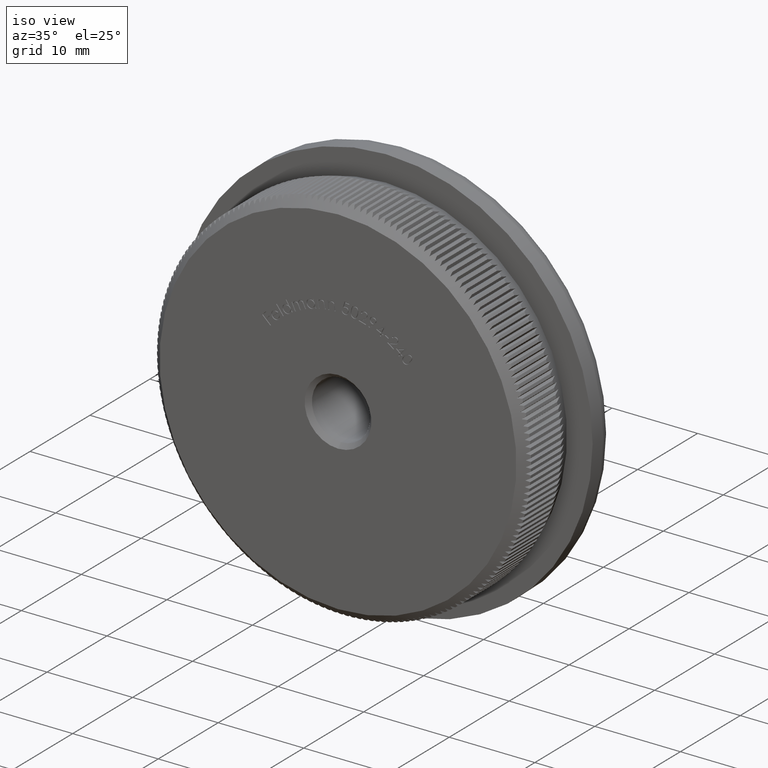
[diagram: clean part render]
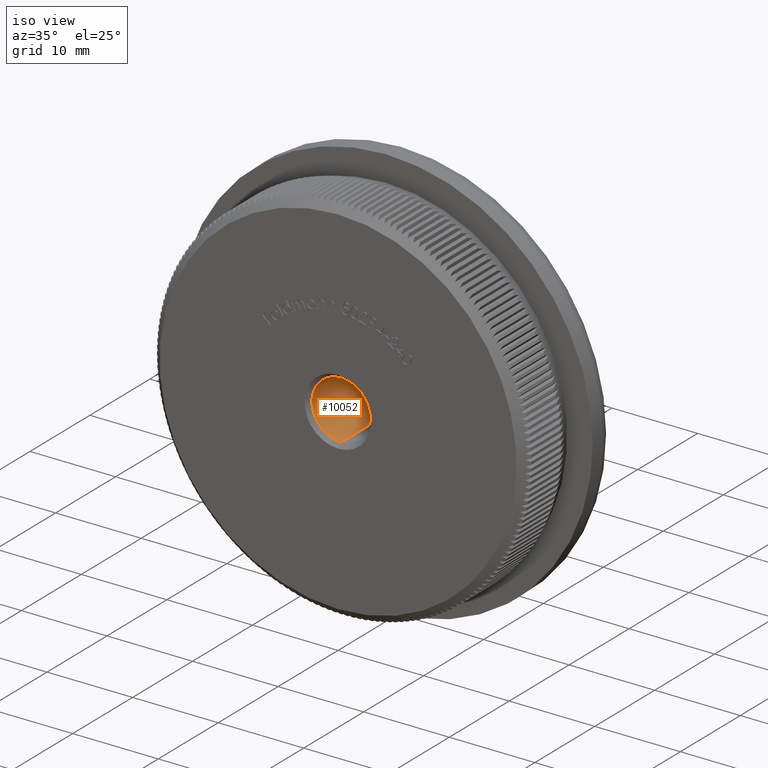
[diagram: same view with one face highlighted and labeled with its STEP entity id]
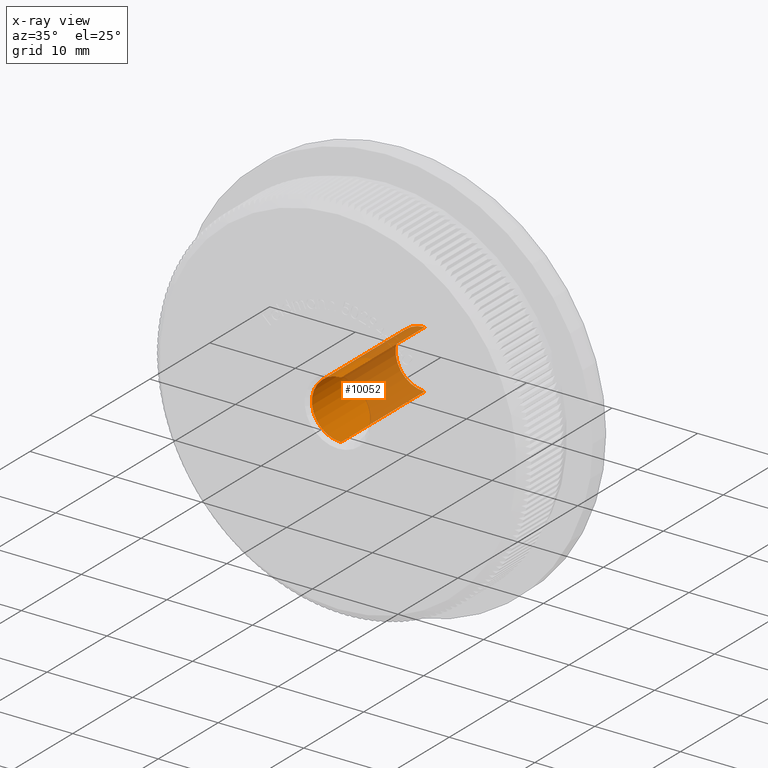
[diagram: x-ray of the same camera — body ghosted, the highlighted face saturated]
A machine part, iso view. The second image highlights one B-rep face of the part: STEP entity #10052.
The next image is the same camera in x-ray: the body ghosted, the highlighted face saturated — about 52% of this face is hidden behind the body in this view.
In plain terms, the highlighted cylindrical surface (edge-blend (fillet) strip) has radius 3.4 mm, axis along (-0, -1, -0).
Its self-contained STEP definition (entity closure, byte-faithful):
#27 = CARTESIAN_POINT ( 'NONE',  ( 4.163799117100995600E-016, 0.0000000000000000000, 3.399999999999995500 ) ) ;
#74 = ORIENTED_EDGE ( 'NONE', *, *, #16066, .T. ) ;
#2779 = CIRCLE ( 'NONE', #4873, 3.399999999999995500 ) ;
#3163 = EDGE_CURVE ( 'NONE', #30627, #23133, #6333, .T. ) ;
#4873 = AXIS2_PLACEMENT_3D ( 'NONE', #31132, #6093, #23854 ) ;
#5427 = DIRECTION ( 'NONE',  ( -0.0000000000000000000, -1.000000000000000000, -0.0000000000000000000 ) ) ;
#6093 = DIRECTION ( 'NONE',  ( 0.0000000000000000000, -1.000000000000000000, 0.0000000000000000000 ) ) ;
#6333 = LINE ( 'NONE', #27, #7941 ) ;
#6777 = VECTOR ( 'NONE', #14960, 1000.000000000000000 ) ;
#7447 = EDGE_LOOP ( 'NONE', ( #13385, #16219, #74, #24849 ) ) ;
#7745 = VERTEX_POINT ( 'NONE', #12858 ) ;
#7941 = VECTOR ( 'NONE', #5427, 1000.000000000000000 ) ;
#9639 = DIRECTION ( 'NONE',  ( 0.0000000000000000000, 0.0000000000000000000, 1.000000000000000000 ) ) ;
#9871 = DIRECTION ( 'NONE',  ( 0.0000000000000000000, 0.0000000000000000000, -1.000000000000000000 ) ) ;
#9929 = CARTESIAN_POINT ( 'NONE',  ( 4.163799117100995600E-016, 0.4999999999999891800, 3.399999999999995500 ) ) ;
#10052 = ADVANCED_FACE ( 'NONE', ( #29134 ), #22437, .F. ) ;
#10727 = VERTEX_POINT ( 'NONE', #16081 ) ;
#12858 = CARTESIAN_POINT ( 'NONE',  ( 0.0000000000000000000, 0.4999999999999891800, -3.399999999999995500 ) ) ;
#13385 = ORIENTED_EDGE ( 'NONE', *, *, #24056, .T. ) ;
#14661 = DIRECTION ( 'NONE',  ( 0.0000000000000000000, 1.000000000000000000, 0.0000000000000000000 ) ) ;
#14776 = CARTESIAN_POINT ( 'NONE',  ( 0.0000000000000000000, 0.0000000000000000000, 0.0000000000000000000 ) ) ;
#14960 = DIRECTION ( 'NONE',  ( -0.0000000000000000000, -1.000000000000000000, -0.0000000000000000000 ) ) ;
#16066 = EDGE_CURVE ( 'NONE', #23133, #7745, #2779, .T. ) ;
#16081 = CARTESIAN_POINT ( 'NONE',  ( 0.0000000000000000000, 14.45906987097148100, -3.399999999999995500 ) ) ;
#16219 = ORIENTED_EDGE ( 'NONE', *, *, #3163, .T. ) ;
#18842 = AXIS2_PLACEMENT_3D ( 'NONE', #14776, #24700, #9871 ) ;
#20960 = AXIS2_PLACEMENT_3D ( 'NONE', #30091, #14661, #9639 ) ;
#22437 = CYLINDRICAL_SURFACE ( 'NONE', #18842, 3.399999999999995500 ) ;
#23133 = VERTEX_POINT ( 'NONE', #9929 ) ;
#23472 = LINE ( 'NONE', #27520, #6777 ) ;
#23854 = DIRECTION ( 'NONE',  ( 0.0000000000000000000, 0.0000000000000000000, -1.000000000000000000 ) ) ;
#24056 = EDGE_CURVE ( 'NONE', #10727, #30627, #30988, .T. ) ;
#24700 = DIRECTION ( 'NONE',  ( -0.0000000000000000000, -1.000000000000000000, -0.0000000000000000000 ) ) ;
#24849 = ORIENTED_EDGE ( 'NONE', *, *, #25462, .F. ) ;
#25462 = EDGE_CURVE ( 'NONE', #10727, #7745, #23472, .T. ) ;
#27302 = CARTESIAN_POINT ( 'NONE',  ( 4.163799117100995600E-016, 14.45906987097148100, 3.399999999999995500 ) ) ;
#27520 = CARTESIAN_POINT ( 'NONE',  ( 0.0000000000000000000, 0.0000000000000000000, -3.399999999999995500 ) ) ;
#29134 = FACE_OUTER_BOUND ( 'NONE', #7447, .T. ) ;
#30091 = CARTESIAN_POINT ( 'NONE',  ( 0.0000000000000000000, 14.45906987097148100, 0.0000000000000000000 ) ) ;
#30627 = VERTEX_POINT ( 'NONE', #27302 ) ;
#30988 = CIRCLE ( 'NONE', #20960, 3.399999999999995500 ) ;
#31132 = CARTESIAN_POINT ( 'NONE',  ( 0.0000000000000000000, 0.4999999999999891800, 0.0000000000000000000 ) ) ;